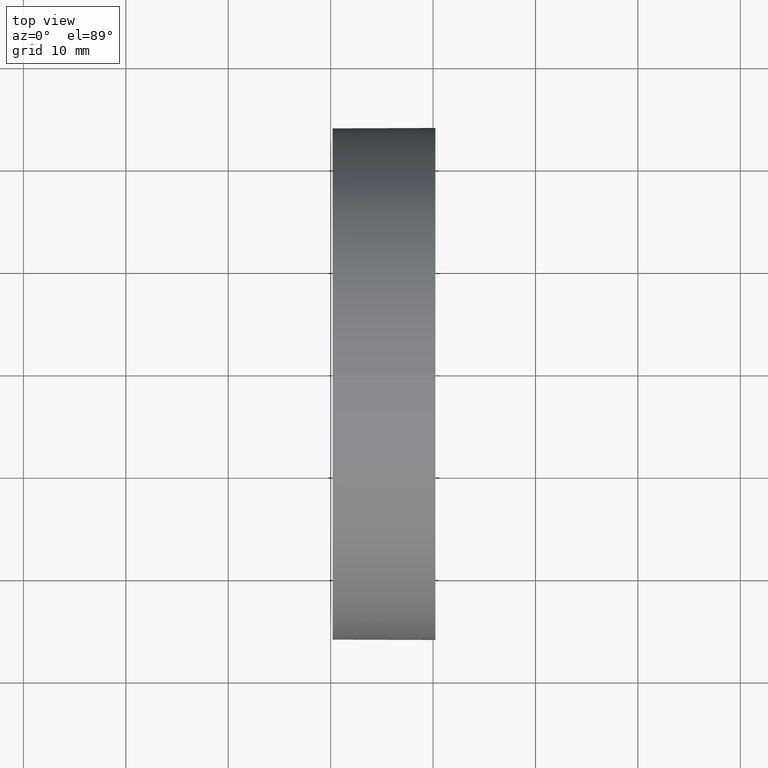
[diagram: clean part render]
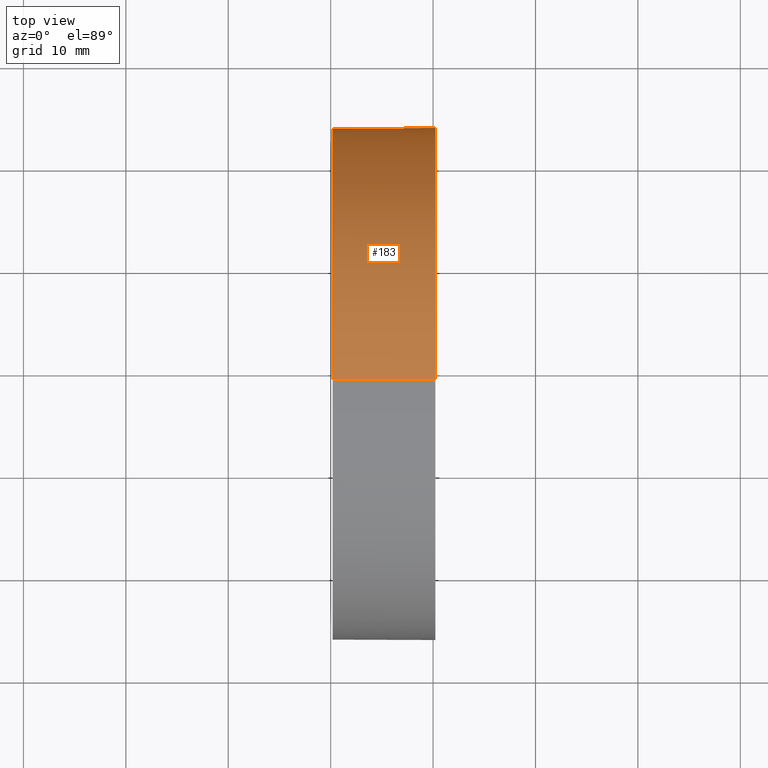
[diagram: same view with one face highlighted and labeled with its STEP entity id]
A machine part, top view. The second image highlights one B-rep face of the part: STEP entity #183.
In plain terms, the highlighted cylindrical surface (partial cylindrical patch) has radius 25 mm, axis along (-1, -0, -0).
Its self-contained STEP definition (entity closure, byte-faithful):
#2 = ORIENTED_EDGE ( 'NONE', *, *, #17, .T. ) ;
#3 = DIRECTION ( 'NONE',  ( -1.000000000000000000, -0.0000000000000000000, -0.0000000000000000000 ) ) ;
#4 = CARTESIAN_POINT ( 'NONE',  ( 217.9702860043302100, 138.7560422467448700, 24.99999999999999300 ) ) ;
#8 = EDGE_CURVE ( 'NONE', #123, #41, #68, .T. ) ;
#9 = AXIS2_PLACEMENT_3D ( 'NONE', #47, #3, #178 ) ;
#11 = FACE_OUTER_BOUND ( 'NONE', #119, .T. ) ;
#12 = CARTESIAN_POINT ( 'NONE',  ( 230.1853110698390300, 138.7560422467448700, -24.99999999999999300 ) ) ;
#14 = EDGE_CURVE ( 'NONE', #78, #112, #31, .T. ) ;
#16 = CARTESIAN_POINT ( 'NONE',  ( 217.9702860043302100, 138.7560422467448700, 0.0000000000000000000 ) ) ;
#17 = EDGE_CURVE ( 'NONE', #112, #41, #62, .T. ) ;
#22 = VECTOR ( 'NONE', #157, 1000.000000000000000 ) ;
#24 = AXIS2_PLACEMENT_3D ( 'NONE', #171, #97, #58 ) ;
#31 = CIRCLE ( 'NONE', #24, 24.99999999999999300 ) ;
#37 = EDGE_CURVE ( 'NONE', #144, #123, #40, .T. ) ;
#40 = LINE ( 'NONE', #4, #95 ) ;
#41 = VERTEX_POINT ( 'NONE', #12 ) ;
#47 = CARTESIAN_POINT ( 'NONE',  ( 240.2287972240879400, 138.7560422467448700, 0.0000000000000000000 ) ) ;
#58 = DIRECTION ( 'NONE',  ( 0.0000000000000000000, 0.0000000000000000000, 1.000000000000000000 ) ) ;
#59 = CARTESIAN_POINT ( 'NONE',  ( 240.2287972240879400, 138.7560422467448700, 24.99999999999999300 ) ) ;
#60 = DIRECTION ( 'NONE',  ( -1.000000000000000000, -0.0000000000000000000, -0.0000000000000000000 ) ) ;
#62 = LINE ( 'NONE', #126, #22 ) ;
#64 = AXIS2_PLACEMENT_3D ( 'NONE', #16, #60, #116 ) ;
#65 = ORIENTED_EDGE ( 'NONE', *, *, #124, .T. ) ;
#68 = CIRCLE ( 'NONE', #143, 24.99999999999999300 ) ;
#69 = DIRECTION ( 'NONE',  ( -1.000000000000000000, -0.0000000000000000000, -0.0000000000000000000 ) ) ;
#70 = CARTESIAN_POINT ( 'NONE',  ( 230.1853110698390300, 138.7560422467448700, 0.0000000000000000000 ) ) ;
#78 = VERTEX_POINT ( 'NONE', #146 ) ;
#80 = ORIENTED_EDGE ( 'NONE', *, *, #37, .F. ) ;
#84 = DIRECTION ( 'NONE',  ( 0.0000000000000000000, 0.0000000000000000000, 1.000000000000000000 ) ) ;
#95 = VECTOR ( 'NONE', #101, 1000.000000000000000 ) ;
#97 = DIRECTION ( 'NONE',  ( -1.000000000000000000, -0.0000000000000000000, -0.0000000000000000000 ) ) ;
#101 = DIRECTION ( 'NONE',  ( -1.000000000000000000, -0.0000000000000000000, -0.0000000000000000000 ) ) ;
#105 = CARTESIAN_POINT ( 'NONE',  ( 230.1853110698390300, 138.7560422467448700, 24.99999999999999300 ) ) ;
#112 = VERTEX_POINT ( 'NONE', #128 ) ;
#116 = DIRECTION ( 'NONE',  ( 0.0000000000000000000, 0.0000000000000000000, 1.000000000000000000 ) ) ;
#119 = EDGE_LOOP ( 'NONE', ( #155, #2, #139, #80, #65 ) ) ;
#120 = CYLINDRICAL_SURFACE ( 'NONE', #64, 24.99999999999999300 ) ;
#123 = VERTEX_POINT ( 'NONE', #105 ) ;
#124 = EDGE_CURVE ( 'NONE', #144, #78, #182, .T. ) ;
#126 = CARTESIAN_POINT ( 'NONE',  ( 217.9702860043302100, 138.7560422467448700, -24.99999999999999300 ) ) ;
#128 = CARTESIAN_POINT ( 'NONE',  ( 240.2287972240879400, 138.7560422467448700, -24.99999999999999300 ) ) ;
#139 = ORIENTED_EDGE ( 'NONE', *, *, #8, .F. ) ;
#143 = AXIS2_PLACEMENT_3D ( 'NONE', #70, #69, #84 ) ;
#144 = VERTEX_POINT ( 'NONE', #59 ) ;
#146 = CARTESIAN_POINT ( 'NONE',  ( 240.2287972240879700, 163.7560422467450100, 3.061616997868400400E-015 ) ) ;
#155 = ORIENTED_EDGE ( 'NONE', *, *, #14, .T. ) ;
#157 = DIRECTION ( 'NONE',  ( -1.000000000000000000, -0.0000000000000000000, -0.0000000000000000000 ) ) ;
#171 = CARTESIAN_POINT ( 'NONE',  ( 240.2287972240879400, 138.7560422467448700, 0.0000000000000000000 ) ) ;
#178 = DIRECTION ( 'NONE',  ( 0.0000000000000000000, 0.0000000000000000000, 1.000000000000000000 ) ) ;
#182 = CIRCLE ( 'NONE', #9, 24.99999999999999300 ) ;
#183 = ADVANCED_FACE ( 'NONE', ( #11 ), #120, .T. ) ;